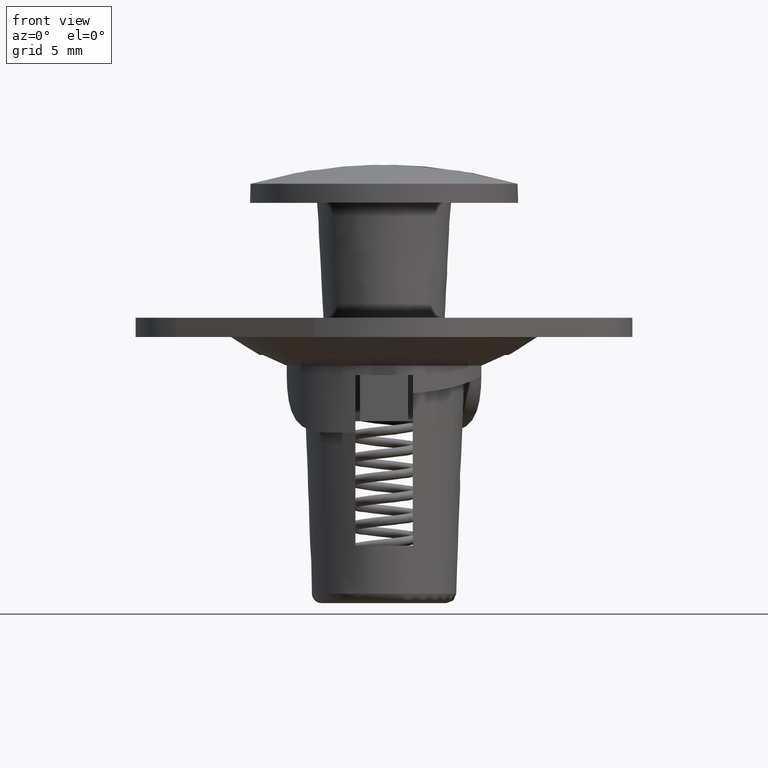
[diagram: clean part render]
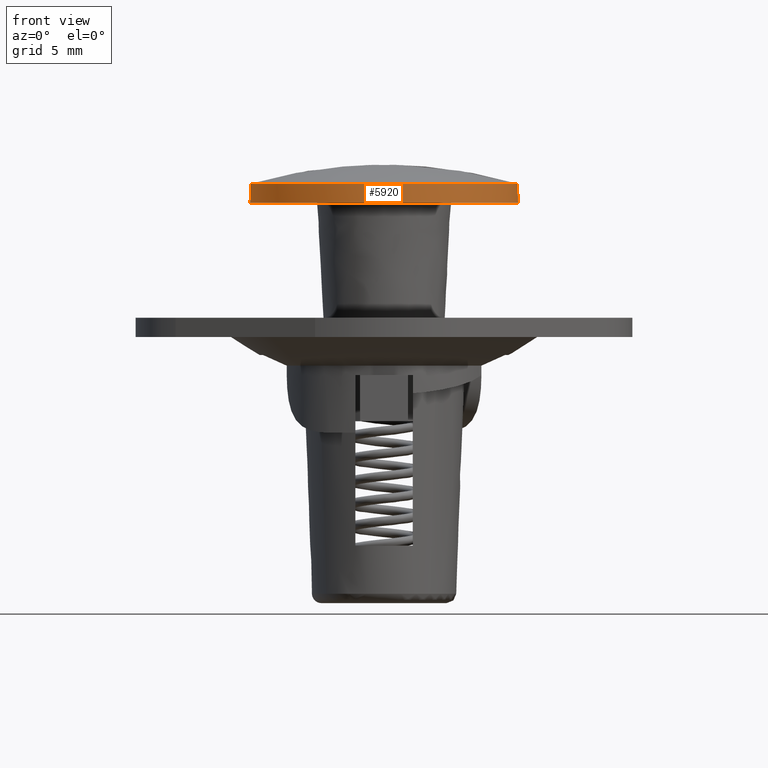
[diagram: same view with one face highlighted and labeled with its STEP entity id]
A machine part, front view. The second image highlights one B-rep face of the part: STEP entity #5920.
In plain terms, the highlighted face is a freeform B-spline surface patch.
Its self-contained STEP definition (entity closure, byte-faithful):
#5741=CARTESIAN_POINT('',(-4.384960074374807,5.456383889183279,-1.025000000000000));
#5742=CARTESIAN_POINT('',(-4.701025635032046,5.202381441314030,-1.025000000000000));
#5743=CARTESIAN_POINT('',(-4.985649038161602,4.913583587187486,-1.025000000000000));
#5744=CARTESIAN_POINT('',(-9.899232625349089,-0.072065450974116,-1.025000000000000));
#5745=CARTESIAN_POINT('',(-4.913583587187486,-4.985649038161602,-1.025000000000000));
#5746=CARTESIAN_POINT('',(0.072065450974116,-9.899232625349089,-1.025000000000000));
#5747=CARTESIAN_POINT('',(4.985649038161602,-4.913583587187486,-1.025000000000000));
#5748=CARTESIAN_POINT('',(9.899232625349089,0.072065450974116,-1.025000000000000));
#5749=CARTESIAN_POINT('',(4.913583587187486,4.985649038161602,-1.025000000000000));
#5750=CARTESIAN_POINT('',(-4.384960074374807,5.456383889183279,0.025625000000000));
#5751=CARTESIAN_POINT('',(-4.701025635032046,5.202381441314030,0.025625000000000));
#5752=CARTESIAN_POINT('',(-4.985649038161602,4.913583587187486,0.025625000000000));
#5753=CARTESIAN_POINT('',(-9.899232625349089,-0.072065450974116,0.025625000000000));
#5754=CARTESIAN_POINT('',(-4.913583587187486,-4.985649038161602,0.025625000000000));
#5755=CARTESIAN_POINT('',(0.072065450974116,-9.899232625349089,0.025625000000000));
#5756=CARTESIAN_POINT('',(4.985649038161602,-4.913583587187486,0.025625000000000));
#5757=CARTESIAN_POINT('',(9.899232625349089,0.072065450974116,0.025625000000000));
#5758=CARTESIAN_POINT('',(4.913583587187486,4.985649038161602,0.025625000000000));
#5766=(BOUNDED_SURFACE()B_SPLINE_SURFACE(2,1,((#5741,#5750),(#5742,#5751),(#5743,#5752),(#5744,#5753),(#5745,#5754),(#5746,#5755),(#5747,#5756),(#5748,#5757),(#5749,#5758)),.UNSPECIFIED.,.F.,.F.,.U.)B_SPLINE_SURFACE_WITH_KNOTS((3,2,2,2,3),(2,2),(0.0,0.927838379715732,12.525818126162390,24.123797872609050,35.721777619055707),(0.0,1.0),.UNSPECIFIED.)GEOMETRIC_REPRESENTATION_ITEM()RATIONAL_B_SPLINE_SURFACE(((0.956886118190660,0.956886118190660),(0.976568542494924,0.976568542494924),(1.0,1.0),(0.707106781186548,0.707106781186548),(1.0,1.0),(0.707106781186548,0.707106781186548),(1.0,1.0),(0.707106781186548,0.707106781186548),(1.0,1.0)))REPRESENTATION_ITEM('')SURFACE());
#5767=CARTESIAN_POINT('',(-4.384960071080463,5.456383891830731,4.329796E-013));
#5768=VERTEX_POINT('',#5767);
#5769=CARTESIAN_POINT('',(-6.974238309665040,0.599999999999909,0.0));
#5770=VERTEX_POINT('',#5769);
#5771=CARTESIAN_POINT('',(-4.384960071080463,5.456383891830731,4.329796E-013));
#5772=CARTESIAN_POINT('',(-4.763889942872771,5.151941913132815,4.042762E-013));
#5773=CARTESIAN_POINT('',(-5.447418009711555,4.474127316501205,3.415238E-013));
#5774=CARTESIAN_POINT('',(-6.133635637615231,3.436994713034236,2.480965E-013));
#5775=CARTESIAN_POINT('',(-6.588451572090445,2.428054141067976,1.587414E-013));
#5776=CARTESIAN_POINT('',(-6.852626277600688,1.535711460685377,8.070724E-014));
#5777=CARTESIAN_POINT('',(-6.948994455500668,0.893506858134659,2.522269E-014));
#5778=CARTESIAN_POINT('',(-6.974238309665040,0.599999999999909,0.0));
#5779=B_SPLINE_CURVE_WITH_KNOTS('',3,(#5771,#5772,#5773,#5774,#5775,#5776,#5777,#5778),.UNSPECIFIED.,.F.,.U.,(4,1,1,1,1,4),(6.202838E-009,1.458228277067489,2.872260343967581,3.711851764376896,4.772384311380766,5.656157381771239),.UNSPECIFIED.);
#5780=EDGE_CURVE('',#5768,#5770,#5779,.T.);
#5781=ORIENTED_EDGE('',*,*,#5780,.F.);
#5782=CARTESIAN_POINT('',(-4.384960171086622,5.456383984194860,-1.0));
#5783=VERTEX_POINT('',#5782);
#5784=CARTESIAN_POINT('',(-4.384960171086622,5.456383984194860,-1.0));
#5785=CARTESIAN_POINT('',(-4.384960071080463,5.456383891830731,4.329796E-013));
#5786=QUASI_UNIFORM_CURVE('',1,(#5784,#5785),.UNSPECIFIED.,.F.,.U.);
#5787=EDGE_CURVE('',#5783,#5768,#5786,.T.);
#5788=ORIENTED_EDGE('',*,*,#5787,.F.);
#5789=CARTESIAN_POINT('',(-7.0,0.0,-1.0));
#5790=VERTEX_POINT('',#5789);
#5791=CARTESIAN_POINT('',(-4.384960171086622,5.456383984194860,-1.0));
#5792=CARTESIAN_POINT('',(-4.677099378645253,5.221646501736327,-0.999999999999998));
#5793=CARTESIAN_POINT('',(-5.116598288985945,4.806137803203769,-1.000000000000002));
#5794=CARTESIAN_POINT('',(-5.745703740443375,4.035095715668929,-0.999999999999997));
#5795=CARTESIAN_POINT('',(-6.174184457427771,3.338821883968052,-1.000000000000003));
#5796=CARTESIAN_POINT('',(-6.578507912010080,2.447760044972679,-0.999999999999997));
#5797=CARTESIAN_POINT('',(-6.902570267180360,1.401257489136724,-1.000000000000004));
#5798=CARTESIAN_POINT('',(-7.000084881513317,0.505117958252224,-1.000000000000002));
#5799=CARTESIAN_POINT('',(-7.0,0.0,-1.0));
#5800=B_SPLINE_CURVE_WITH_KNOTS('',3,(#5791,#5792,#5793,#5794,#5795,#5796,#5797,#5798,#5799),.UNSPECIFIED.,.F.,.U.,(4,1,1,1,1,1,4),(7.698273E-009,1.124283735292661,1.808635951758255,2.981807576416411,3.568380438660266,4.741555614801589,6.256897876777917),.UNSPECIFIED.);
#5801=EDGE_CURVE('',#5783,#5790,#5800,.T.);
#5802=ORIENTED_EDGE('',*,*,#5801,.T.);
#5803=CARTESIAN_POINT('',(0.000000551489608,-6.999999999999979,-1.0));
#5804=VERTEX_POINT('',#5803);
#5805=CARTESIAN_POINT('',(-7.0,0.0,-1.0));
#5806=CARTESIAN_POINT('',(-7.000120489071566,-0.544065141564261,-0.999999999999998));
#5807=CARTESIAN_POINT('',(-6.906040128100480,-1.345764092460291,-1.000000000000003));
#5808=CARTESIAN_POINT('',(-6.583832262815326,-2.431763804903909,-1.000000000000001));
#5809=CARTESIAN_POINT('',(-6.225719639463445,-3.246400581686409,-0.999999999999995));
#5810=CARTESIAN_POINT('',(-5.664097569054619,-4.164231762956526,-0.999999999999992));
#5811=CARTESIAN_POINT('',(-4.999503170417507,-4.939461760681731,-1.000000000000032));
#5812=CARTESIAN_POINT('',(-4.215526877701944,-5.611490108868918,-0.999999999999984));
#5813=CARTESIAN_POINT('',(-3.388914247467292,-6.156546727831723,-1.000000000000007));
#5814=CARTESIAN_POINT('',(-2.500506797553302,-6.563464017830049,-0.999999999999999));
#5815=CARTESIAN_POINT('',(-1.345757070167377,-6.906017653450776,-1.000000000000019));
#5816=CARTESIAN_POINT('',(-0.544065533025419,-7.000138235719660,-1.000000000000005));
#5817=CARTESIAN_POINT('',(0.000000551489608,-6.999999999999979,-1.0));
#5818=B_SPLINE_CURVE_WITH_KNOTS('',3,(#5805,#5806,#5807,#5808,#5809,#5810,#5811,#5812,#5813,#5814,#5815,#5816,#5817),.UNSPECIFIED.,.F.,.U.,(4,1,1,1,1,1,1,1,1,1,4),(0.000000022040677,1.632156142455532,2.405284037426105,3.393172084496838,4.295161538664254,5.626648726270484,6.442721008450737,7.387658757337382,8.590306652831778,9.363440272611241,10.995591847258449),.UNSPECIFIED.);
#5819=EDGE_CURVE('',#5790,#5804,#5818,.T.);
#5820=ORIENTED_EDGE('',*,*,#5819,.T.);
#5821=CARTESIAN_POINT('',(7.0,0.0,-1.0));
#5822=VERTEX_POINT('',#5821);
#5823=CARTESIAN_POINT('',(0.000000551489608,-6.999999999999979,-1.0));
#5824=CARTESIAN_POINT('',(0.472472655421805,-7.000074270851665,-0.999999999999995));
#5825=CARTESIAN_POINT('',(1.231249416457968,-6.922863041769857,-1.000000000000008));
#5826=CARTESIAN_POINT('',(2.366770418741980,-6.616119234162055,-1.000000000000004));
#5827=CARTESIAN_POINT('',(3.366840376045401,-6.176521539723428,-0.999999999999991));
#5828=CARTESIAN_POINT('',(4.252571300374660,-5.588564793859511,-1.000000000000010));
#5829=CARTESIAN_POINT('',(4.983014755270482,-4.942670003672114,-0.999999999999991));
#5830=CARTESIAN_POINT('',(5.523051208127331,-4.328136233345379,-1.000000000000027));
#5831=CARTESIAN_POINT('',(6.074516412310262,-3.524389687517313,-1.000000000000006));
#5832=CARTESIAN_POINT('',(6.492029712947637,-2.688565008932848,-0.999999999999962));
#5833=CARTESIAN_POINT('',(6.770191111903625,-1.828749855908879,-0.999999999999991));
#5834=CARTESIAN_POINT('',(6.951245741531976,-0.973552135349406,-1.000000000000049));
#5835=CARTESIAN_POINT('',(7.000029506212529,-0.386562531421820,-0.999999999999950));
#5836=CARTESIAN_POINT('',(7.0,0.0,-1.0));
#5837=B_SPLINE_CURVE_WITH_KNOTS('',3,(#5823,#5824,#5825,#5826,#5827,#5828,#5829,#5830,#5831,#5832,#5833,#5834,#5835,#5836),.UNSPECIFIED.,.F.,.U.,(4,1,1,1,1,1,1,1,1,1,1,4),(0.000000022055241,1.417398661474506,2.276428405704650,3.522025793336392,4.681727460023793,5.454857096994710,6.442720643992139,7.129947110648310,8.375548264677576,9.234584296442041,9.835909223193069,10.995591225600240),.UNSPECIFIED.);
#5838=EDGE_CURVE('',#5804,#5822,#5837,.T.);
#5839=ORIENTED_EDGE('',*,*,#5838,.T.);
#5840=CARTESIAN_POINT('',(4.913583498949926,4.985648931567196,-1.000000000000000));
#5841=VERTEX_POINT('',#5840);
#5842=CARTESIAN_POINT('',(7.0,0.0,-1.0));
#5843=CARTESIAN_POINT('',(7.000147686386707,0.563563139180759,-1.000000000000002));
#5844=CARTESIAN_POINT('',(6.901724550589223,1.372678392784566,-1.000000000000001));
#5845=CARTESIAN_POINT('',(6.545111847384667,2.549798211778572,-0.999999999999999));
#5846=CARTESIAN_POINT('',(6.134099026083722,3.430669876330835,-1.000000000000004));
#5847=CARTESIAN_POINT('',(5.552775601532114,4.296158769128626,-1.000000000000008));
#5848=CARTESIAN_POINT('',(5.140010342561463,4.762513421147240,-0.999999999999995));
#5849=CARTESIAN_POINT('',(4.913583498949926,4.985648931567196,-1.000000000000000));
#5850=B_SPLINE_CURVE_WITH_KNOTS('',3,(#5842,#5843,#5844,#5845,#5846,#5847,#5848,#5849),.UNSPECIFIED.,.F.,.U.,(4,1,1,1,1,4),(6.028447E-009,1.690636296986993,2.427583043225609,3.684716902363122,4.595063194247709,5.548754362804907),.UNSPECIFIED.);
#5851=EDGE_CURVE('',#5822,#5841,#5850,.T.);
#5852=ORIENTED_EDGE('',*,*,#5851,.T.);
#5853=CARTESIAN_POINT('',(4.913583593801369,4.985649031643322,-8.123038E-016));
#5854=VERTEX_POINT('',#5853);
#5855=CARTESIAN_POINT('',(4.913583498949926,4.985648931567196,-1.000000000000000));
#5856=CARTESIAN_POINT('',(4.913583593801369,4.985649031643322,-8.123038E-016));
#5857=QUASI_UNIFORM_CURVE('',1,(#5855,#5856),.UNSPECIFIED.,.F.,.U.);
#5858=EDGE_CURVE('',#5841,#5854,#5857,.T.);
#5859=ORIENTED_EDGE('',*,*,#5858,.T.);
#5860=CARTESIAN_POINT('',(6.974238309665070,0.599999999999909,-1.734723E-015));
#5861=VERTEX_POINT('',#5860);
#5862=CARTESIAN_POINT('',(6.974238309665070,0.599999999999909,-1.734723E-015));
#5863=CARTESIAN_POINT('',(6.946641293209192,0.920952085847958,-1.682688E-015));
#5864=CARTESIAN_POINT('',(6.854981809316883,1.507982574647806,-1.582342E-015));
#5865=CARTESIAN_POINT('',(6.621627578937595,2.313836142426004,-1.431090E-015));
#5866=CARTESIAN_POINT('',(6.281258922605765,3.136528997487929,-1.263854E-015));
#5867=CARTESIAN_POINT('',(5.750110889728268,4.053847421515719,-1.058345E-015));
#5868=CARTESIAN_POINT('',(5.225657298789988,4.678159854239154,-8.980191E-016));
#5869=CARTESIAN_POINT('',(4.913583593801369,4.985649031643322,-8.123038E-016));
#5870=B_SPLINE_CURVE_WITH_KNOTS('',3,(#5862,#5863,#5864,#5865,#5866,#5867,#5868,#5869),.UNSPECIFIED.,.F.,.U.,(4,1,1,1,1,4),(4.405497E-009,0.966407645325702,1.778195830992476,2.512657092055096,3.633697934612152,4.948014707344765),.UNSPECIFIED.);
#5871=EDGE_CURVE('',#5861,#5854,#5870,.T.);
#5872=ORIENTED_EDGE('',*,*,#5871,.F.);
#5873=CARTESIAN_POINT('',(6.974238309665040,-0.600000000000000,0.0));
#5874=VERTEX_POINT('',#5873);
#5875=CARTESIAN_POINT('',(6.974238309665040,-0.600000000000000,0.0));
#5876=CARTESIAN_POINT('',(7.008591035542086,-0.200982652169587,4.184735E-019));
#5877=CARTESIAN_POINT('',(7.008583384211819,0.200982716555865,-5.807924E-016));
#5878=CARTESIAN_POINT('',(6.974238309665070,0.599999999999909,-1.734723E-015));
#5879=B_SPLINE_CURVE_WITH_KNOTS('',3,(#5875,#5876,#5877,#5878),.UNSPECIFIED.,.F.,.U.,(4,4),(2.473086E-010,1.201475707310362),.UNSPECIFIED.);
#5880=EDGE_CURVE('',#5874,#5861,#5879,.T.);
#5881=ORIENTED_EDGE('',*,*,#5880,.F.);
#5882=CARTESIAN_POINT('',(-6.974238309665040,-0.600000000000000,0.0));
#5883=VERTEX_POINT('',#5882);
#5884=CARTESIAN_POINT('',(-6.974238309665040,-0.600000000000000,0.0));
#5885=CARTESIAN_POINT('',(-6.948724449875714,-0.896665363452748,0.0));
#5886=CARTESIAN_POINT('',(-6.855706345598140,-1.513565102014255,0.0));
#5887=CARTESIAN_POINT('',(-6.548857206734970,-2.568861235711066,0.0));
#5888=CARTESIAN_POINT('',(-6.077316665667816,-3.534669204954319,0.0));
#5889=CARTESIAN_POINT('',(-5.398036432200558,-4.498979363710794,0.0));
#5890=CARTESIAN_POINT('',(-4.720596591831789,-5.205339649140260,0.0));
#5891=CARTESIAN_POINT('',(-3.882230310139343,-5.849920179422861,0.0));
#5892=CARTESIAN_POINT('',(-3.093947252436461,-6.303422191175871,0.0));
#5893=CARTESIAN_POINT('',(-2.302425517022968,-6.624834200160434,0.0));
#5894=CARTESIAN_POINT('',(-1.494708169031750,-6.855734673132682,0.0));
#5895=CARTESIAN_POINT('',(-0.731023607014161,-6.978596895527117,0.0));
#5896=CARTESIAN_POINT('',(0.148958617409646,-7.014343311210797,0.0));
#5897=CARTESIAN_POINT('',(1.136596627725447,-6.939777005973773,0.0));
#5898=CARTESIAN_POINT('',(2.219403954647081,-6.673958674913679,0.0));
#5899=CARTESIAN_POINT('',(3.302692136742626,-6.204453628691311,0.0));
#5900=CARTESIAN_POINT('',(4.139835859085937,-5.673088219278175,0.0));
#5901=CARTESIAN_POINT('',(4.934944252593100,-4.996857537774869,0.0));
#5902=CARTESIAN_POINT('',(5.530625554152484,-4.326919719651504,0.0));
#5903=CARTESIAN_POINT('',(6.043736950222913,-3.561327156075498,0.0));
#5904=CARTESIAN_POINT('',(6.436238785118840,-2.802548265554651,0.0));
#5905=CARTESIAN_POINT('',(6.796000683357951,-1.807289475448435,0.0));
#5906=CARTESIAN_POINT('',(6.936006546328549,-1.045015683966776,0.0));
#5907=CARTESIAN_POINT('',(6.974238309665040,-0.600000000000000,0.0));
#5908=B_SPLINE_CURVE_WITH_KNOTS('',3,(#5884,#5885,#5886,#5887,#5888,#5889,#5890,#5891,#5892,#5893,#5894,#5895,#5896,#5897,#5898,#5899,#5900,#5901,#5902,#5903,#5904,#5905,#5906,#5907),.UNSPECIFIED.,.F.,.U.,(4,1,1,1,1,1,1,1,1,1,1,1,1,1,1,1,1,1,1,1,1,4),(0.000000060394992,0.893282470266268,1.867825138370311,3.288996165005205,4.101092622811208,5.400451369312197,6.212550385148536,7.268287466186347,8.120995107838176,8.770675081782732,9.785789220700375,10.435434896402070,11.409952757583770,12.749934525674680,13.765056338314469,14.942596484190620,15.714093425192710,16.891635817779591,17.622525831228970,18.475232887776379,19.449747707950451,20.789703454823581),.UNSPECIFIED.);
#5909=EDGE_CURVE('',#5883,#5874,#5908,.T.);
#5910=ORIENTED_EDGE('',*,*,#5909,.F.);
#5911=CARTESIAN_POINT('',(-6.974238309665040,0.599999999999909,0.0));
#5912=CARTESIAN_POINT('',(-7.008592483271117,0.200982880660908,0.0));
#5913=CARTESIAN_POINT('',(-7.008581179631870,-0.200982809811706,0.0));
#5914=CARTESIAN_POINT('',(-6.974238309665040,-0.600000000000000,0.0));
#5915=B_SPLINE_CURVE_WITH_KNOTS('',3,(#5911,#5912,#5913,#5914),.UNSPECIFIED.,.F.,.U.,(4,4),(2.473264E-010,1.201475707310362),.UNSPECIFIED.);
#5916=EDGE_CURVE('',#5770,#5883,#5915,.T.);
#5917=ORIENTED_EDGE('',*,*,#5916,.F.);
#5918=EDGE_LOOP('',(#5781,#5788,#5802,#5820,#5839,#5852,#5859,#5872,#5881,#5910,#5917));
#5919=FACE_OUTER_BOUND('',#5918,.T.);
#5920=ADVANCED_FACE('',(#5919),#5766,.T.);